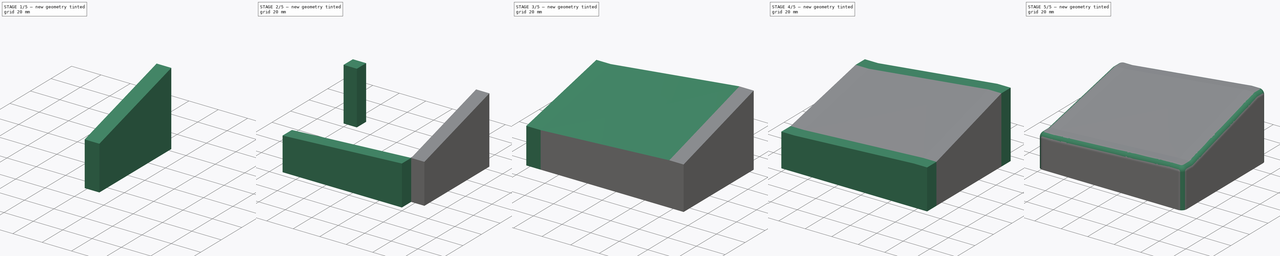
[diagram: build sequence overview — one tinted view per stage of 5, left to right]
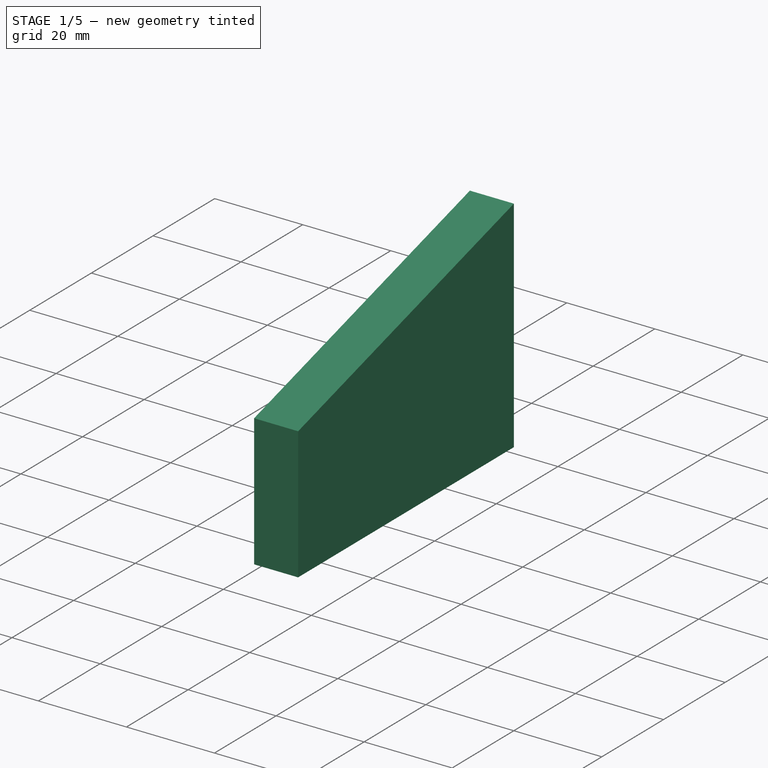
[diagram: stage 1 of 5 — iso view after this stage's code; geometry added in this stage tinted green]
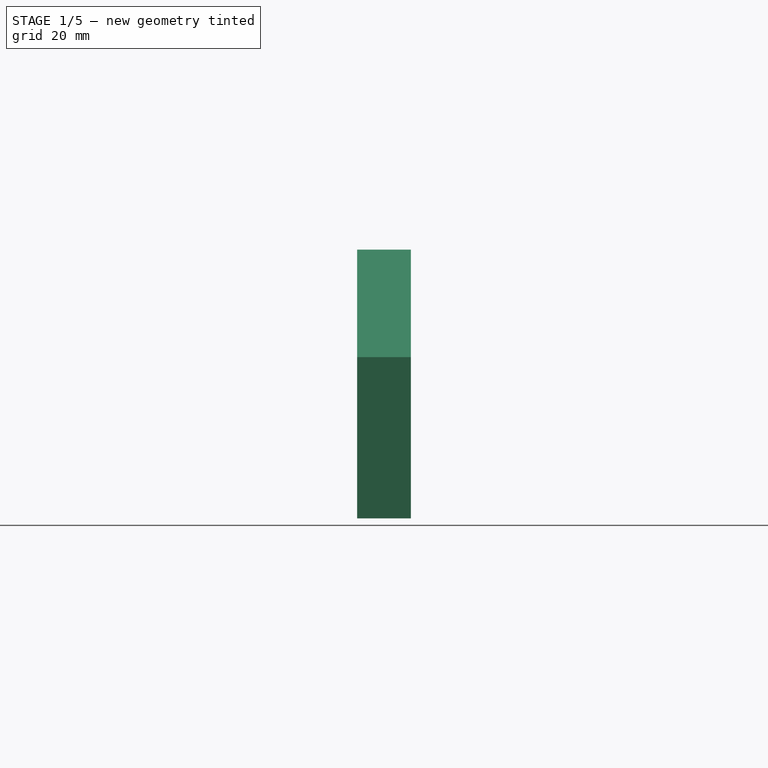
[diagram: stage 1 of 5 — front view after this stage's code; geometry added in this stage tinted green]
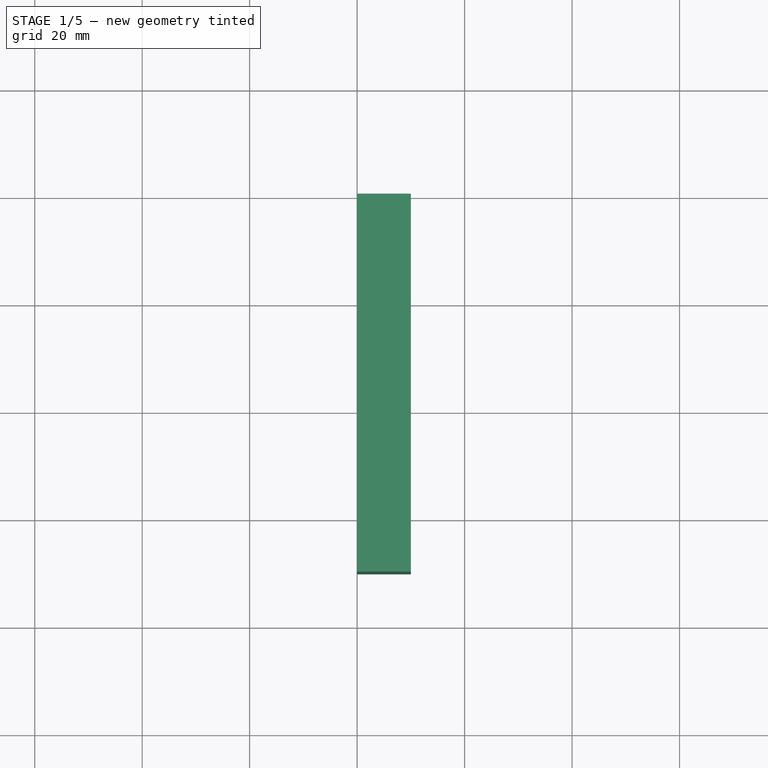
[diagram: stage 1 of 5 — top view after this stage's code; geometry added in this stage tinted green]
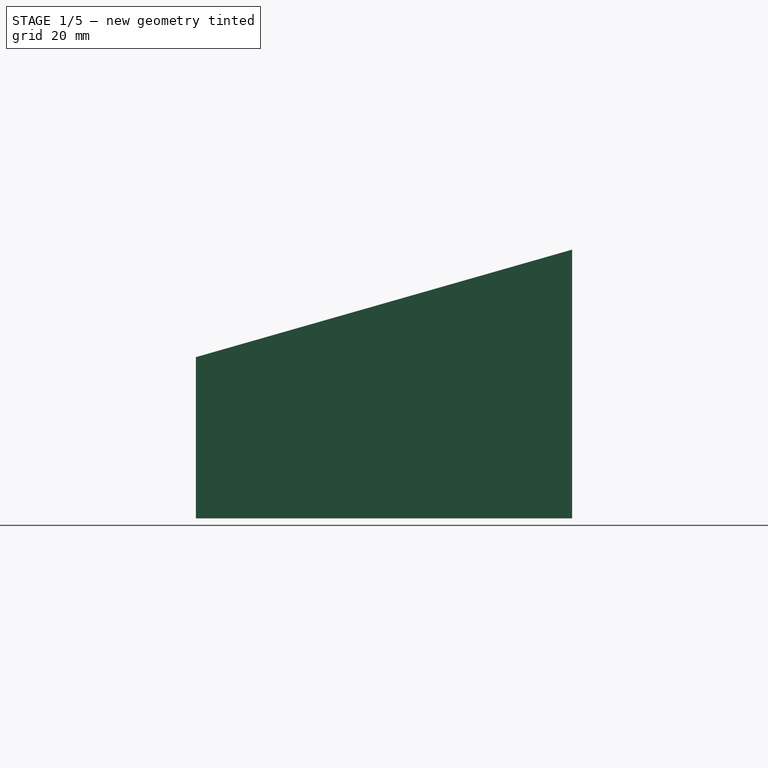
[diagram: stage 1 of 5 — right view after this stage's code; geometry added in this stage tinted green]
FCSTD DOCUMENT  (FreeCAD 1.0R39109 (Git))
Label: ek_wrist_rest
License: All rights reserved
LicenseURL: https://en.wikipedia.org/wiki/All_rights_reserved
objects: Part::FeaturePython×10, Part::Loft×5, Part::Box×4, Part::Fillet×3, Part::MultiFuse×1, PartDesign::FeatureBase×1, Sketcher::SketchObject×1, PartDesign::Pocket×1, PartDesign::Body×1
note: 31 computed .brp shape members not serialized (recipe doc carries the construction recipe); baked Part::Feature solids carry a one-line shape summary decoded from their .brp

FEATURE [Part::Box] Box002  label="Cube002"
  AttacherType = Attacher::AttachEngine3D
  Height = 50
  Length = 10
  Placement = pos=(100,0,0) rot=(0,0,1;0rad)
  Width = 10
FEATURE [Part::Box] Box003  label="Cube003"
  AttacherType = Attacher::AttachEngine3D
  Height = 30
  Length = 10
  Placement = pos=(100,-80,0) rot=(0,0,1;0rad)
  Width = 10
FEATURE [Part::Loft] Loft004
  Closed = false
  MaxDegree = 5
  Ruled = false
  Sections = -> [Facebinder006,Facebinder007]
  Solid = true
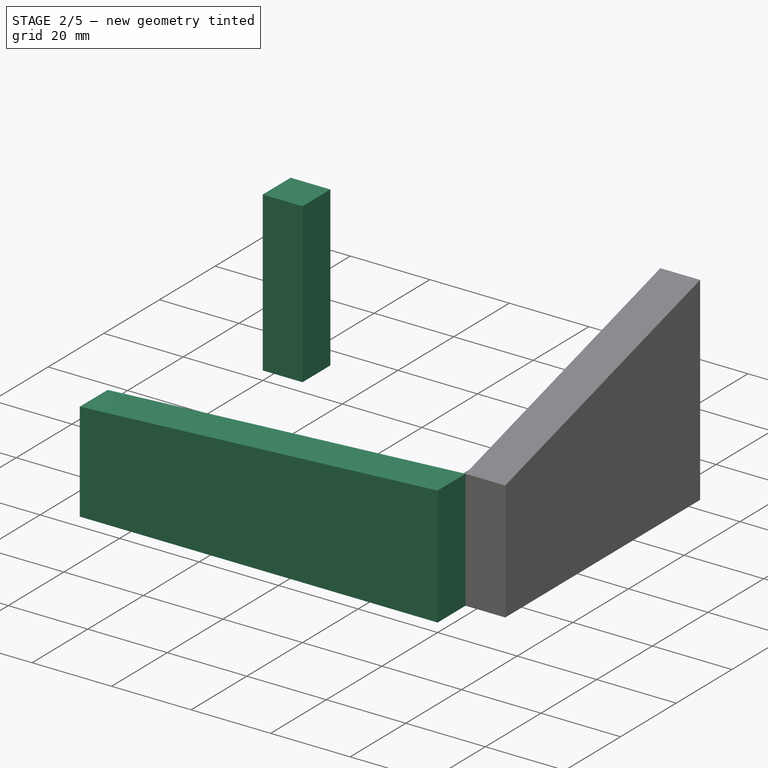
[diagram: stage 2 of 5 — iso view after this stage's code; geometry added in this stage tinted green]
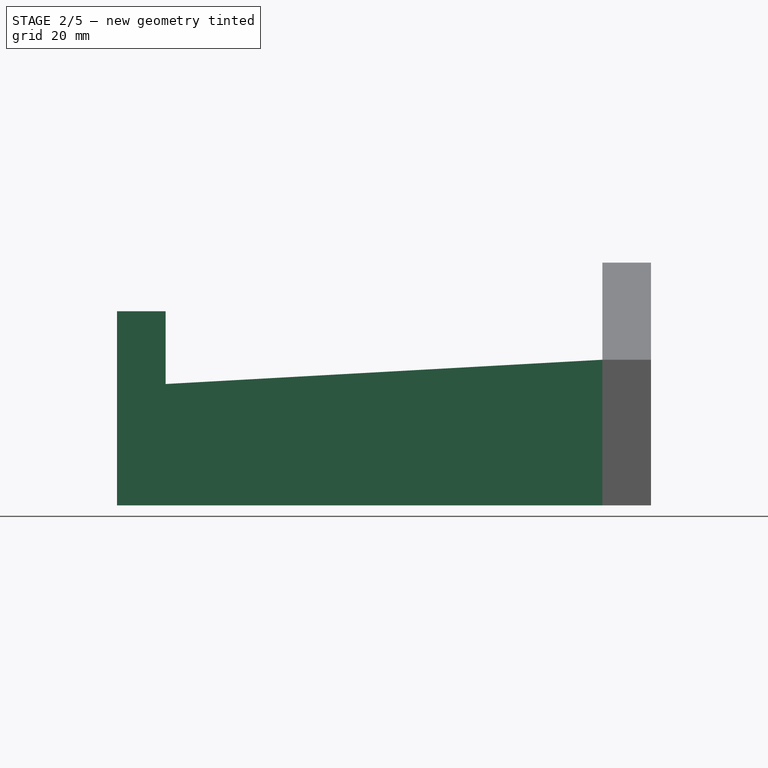
[diagram: stage 2 of 5 — front view after this stage's code; geometry added in this stage tinted green]
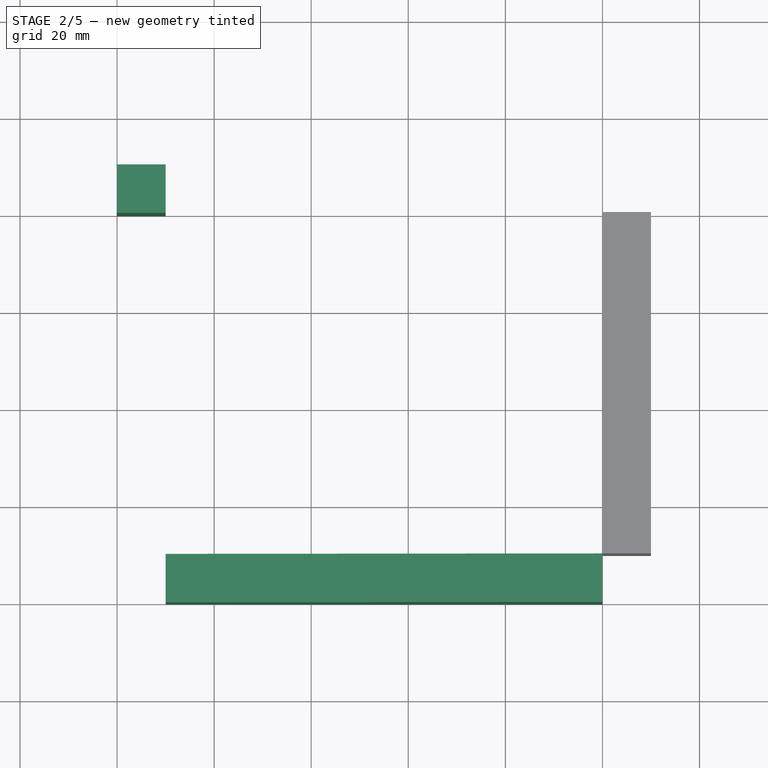
[diagram: stage 2 of 5 — top view after this stage's code; geometry added in this stage tinted green]
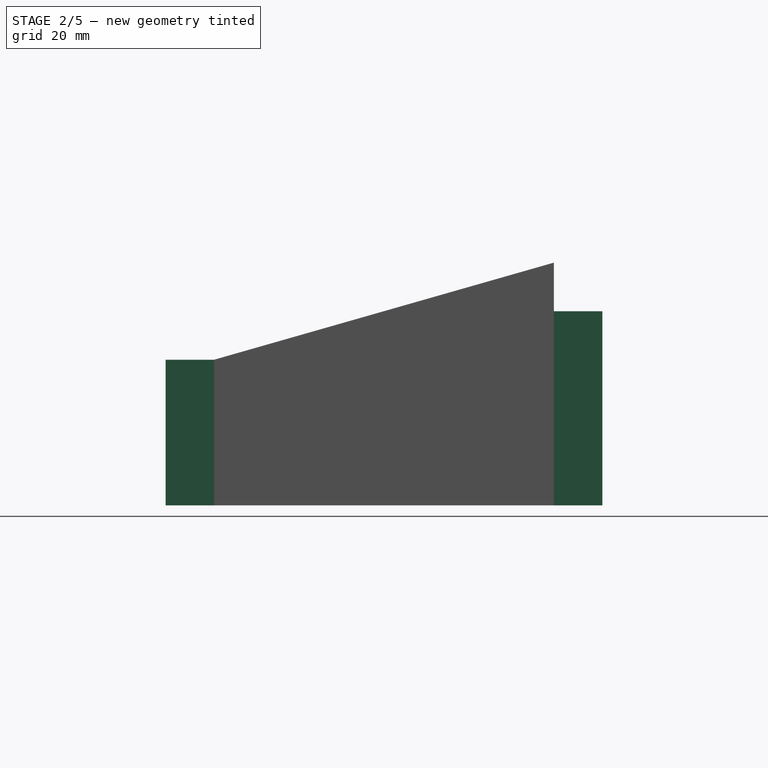
[diagram: stage 2 of 5 — right view after this stage's code; geometry added in this stage tinted green]
FEATURE [Part::Box] Box  label="Cube"
  AttacherType = Attacher::AttachEngine3D
  Height = 40
  Length = 10
  Width = 10
FEATURE [Part::Box] Box001  label="Cube001"
  AttacherType = Attacher::AttachEngine3D
  Height = 25
  Length = 10
  Placement = pos=(0,-80,0) rot=(0,0,1;0rad)
  Width = 10
FEATURE [Part::Loft] Loft001
  Closed = false
  MaxDegree = 5
  Ruled = false
  Sections = -> [Facebinder003,Facebinder002]
  Solid = true
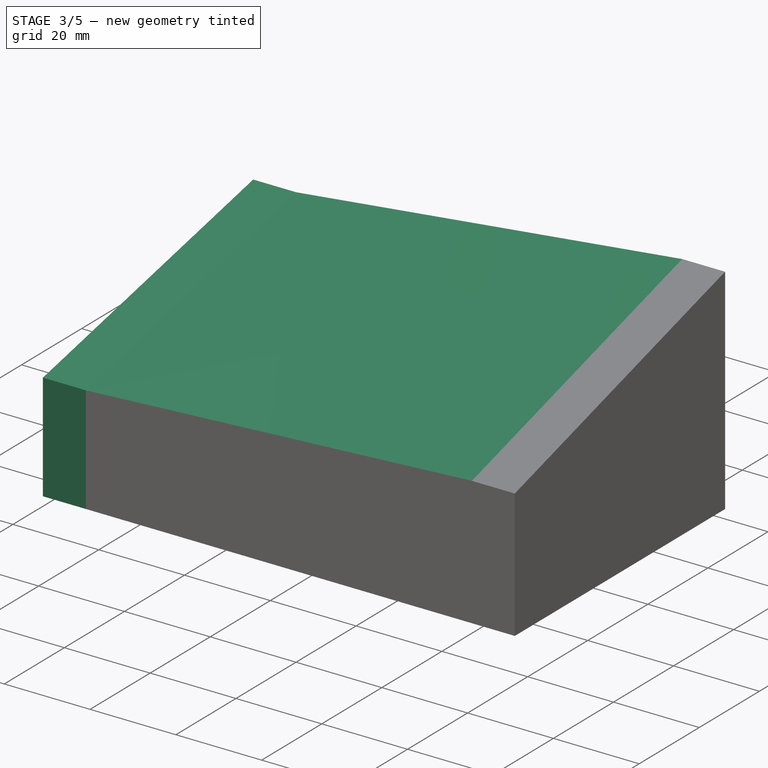
[diagram: stage 3 of 5 — iso view after this stage's code; geometry added in this stage tinted green]
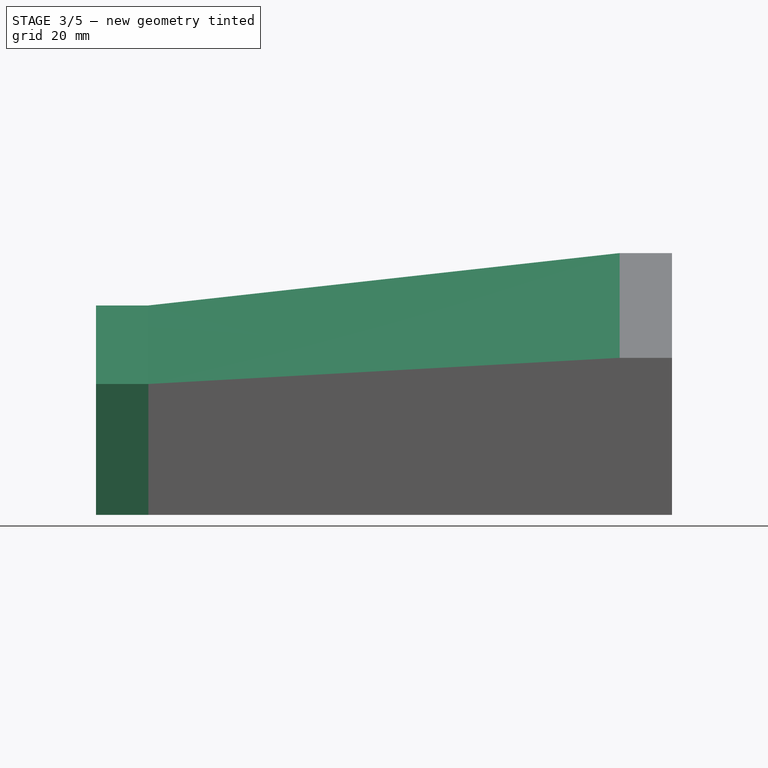
[diagram: stage 3 of 5 — front view after this stage's code; geometry added in this stage tinted green]
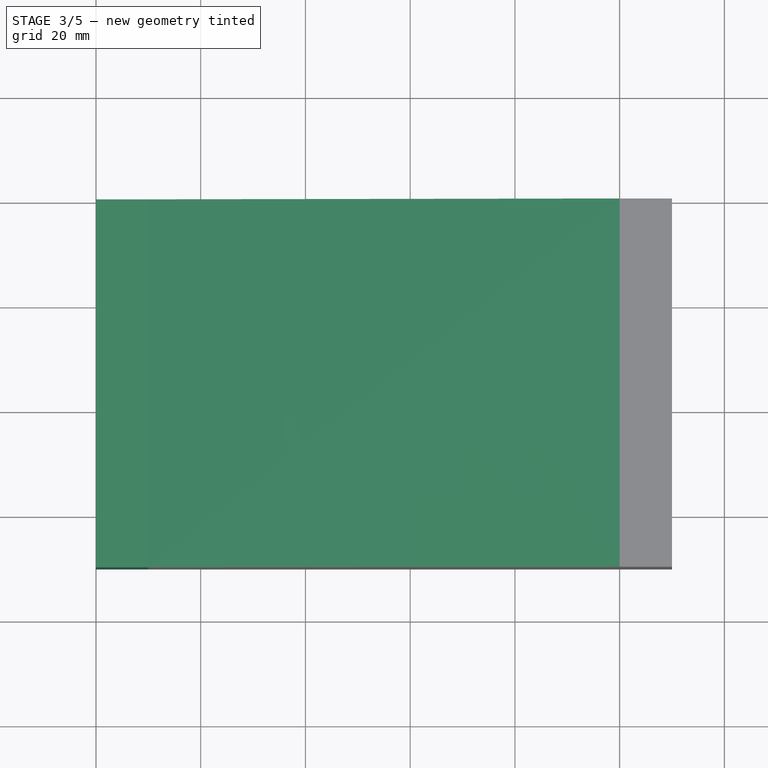
[diagram: stage 3 of 5 — top view after this stage's code; geometry added in this stage tinted green]
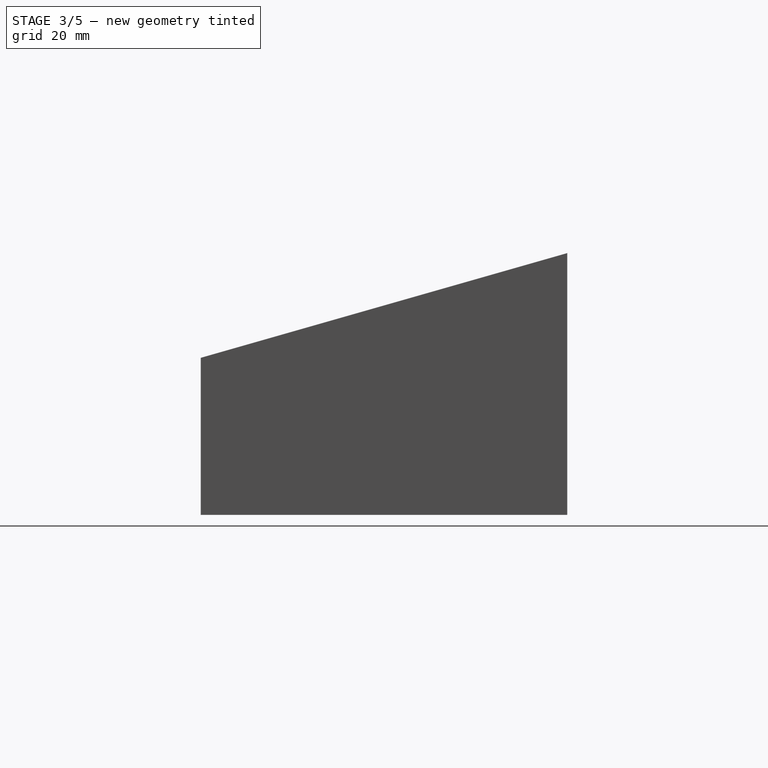
[diagram: stage 3 of 5 — right view after this stage's code; geometry added in this stage tinted green]
FEATURE [Part::FeaturePython] Facebinder  # WARN: FeaturePython — macro-defined, semantics opaque (R4)
  Area = 500
  Extrusion = 0
  Faces = -> [Box002]
  RemoveSplitter = false
  Sew = false
FEATURE [Part::FeaturePython] Facebinder001  # WARN: FeaturePython — macro-defined, semantics opaque (R4)
  Area = 400
  Extrusion = 0
  Faces = -> [Box]
  RemoveSplitter = false
  Sew = false
FEATURE [Part::FeaturePython] Facebinder002  # WARN: FeaturePython — macro-defined, semantics opaque (R4)
  Area = 300
  Extrusion = 0
  Faces = -> [Box003]
  RemoveSplitter = false
  Sew = false
FEATURE [Part::FeaturePython] Facebinder003  # WARN: FeaturePython — macro-defined, semantics opaque (R4)
  Area = 250
  Extrusion = 0
  Faces = -> [Box001]
  RemoveSplitter = false
  Sew = false
FEATURE [Part::Loft] Loft
  Closed = false
  MaxDegree = 5
  Ruled = false
  Sections = -> [Facebinder,Facebinder001]
  Solid = true
FEATURE [Part::FeaturePython] Facebinder004  # WARN: FeaturePython — macro-defined, semantics opaque (R4)
  Area = 400
  Extrusion = 0
  Faces = -> [Box]
  RemoveSplitter = false
  Sew = false
FEATURE [Part::FeaturePython] Facebinder005  # WARN: FeaturePython — macro-defined, semantics opaque (R4)
  Area = 4050
  Extrusion = 0
  Faces = -> [Loft]
  RemoveSplitter = false
  Sew = false
FEATURE [Part::FeaturePython] Facebinder006  # WARN: FeaturePython — macro-defined, semantics opaque (R4)
  Area = 500
  Extrusion = 0
  Faces = -> [Box002]
  RemoveSplitter = false
  Sew = false
FEATURE [Part::FeaturePython] Facebinder007  # WARN: FeaturePython — macro-defined, semantics opaque (R4)
  Area = 300
  Extrusion = 0
  Faces = -> [Box003]
  RemoveSplitter = false
  Sew = false
FEATURE [Part::FeaturePython] Facebinder008  # WARN: FeaturePython — macro-defined, semantics opaque (R4)
  Area = 2475
  Extrusion = 0
  Faces = -> [Loft001]
  RemoveSplitter = false
  Sew = false
FEATURE [Part::FeaturePython] Facebinder009  # WARN: FeaturePython — macro-defined, semantics opaque (R4)
  Area = 250
  Extrusion = 0
  Faces = -> [Box001]
  RemoveSplitter = false
  Sew = false
FEATURE [Part::Loft] Loft002
  Closed = false
  MaxDegree = 5
  Ruled = false
  Sections = -> [Facebinder004,Facebinder009]
  Solid = true
FEATURE [Part::Loft] Loft003
  Closed = false
  MaxDegree = 5
  Ruled = false
  Sections = -> [Facebinder005,Facebinder008]
  Solid = true
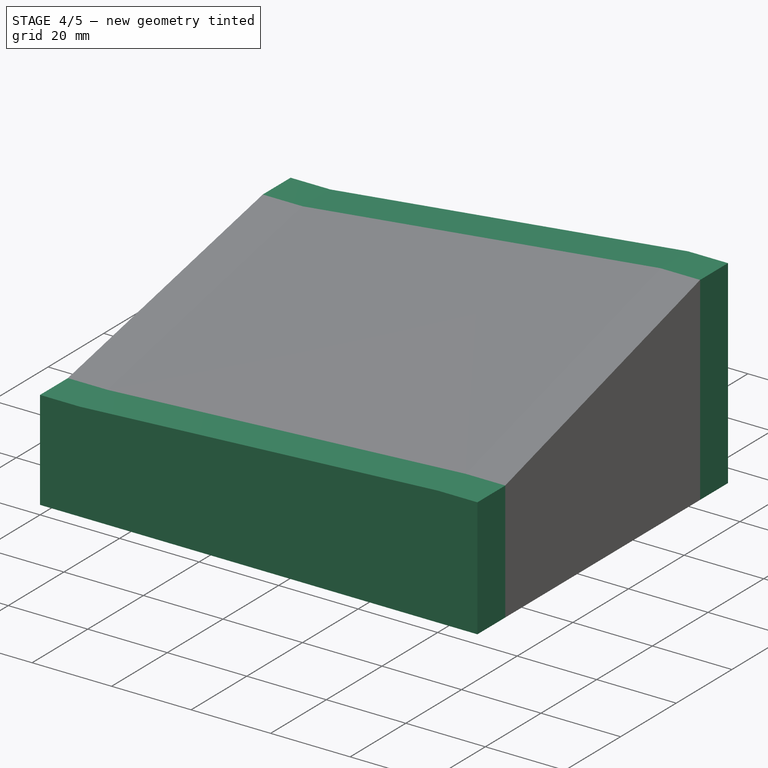
[diagram: stage 4 of 5 — iso view after this stage's code; geometry added in this stage tinted green]
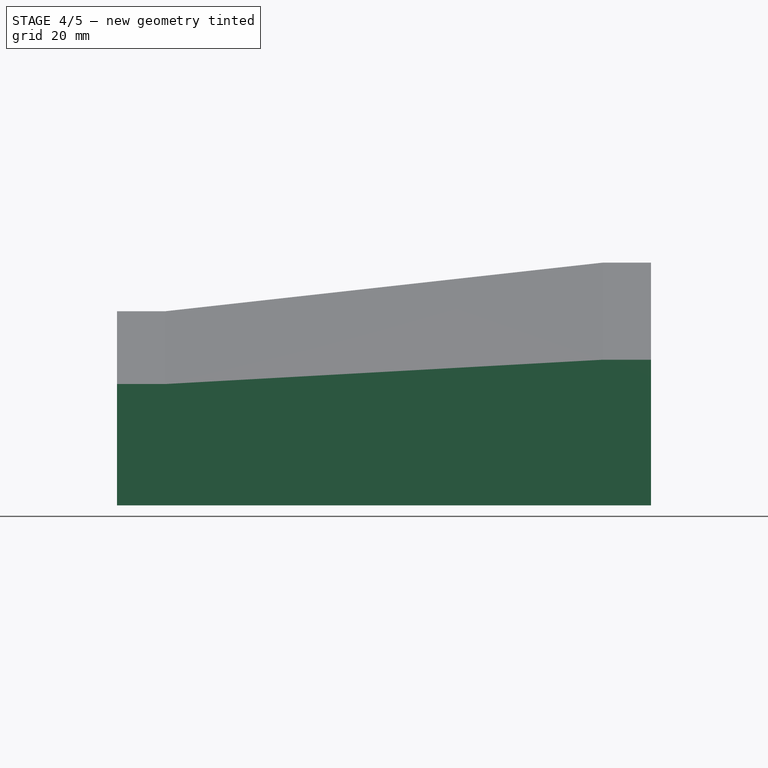
[diagram: stage 4 of 5 — front view after this stage's code; geometry added in this stage tinted green]
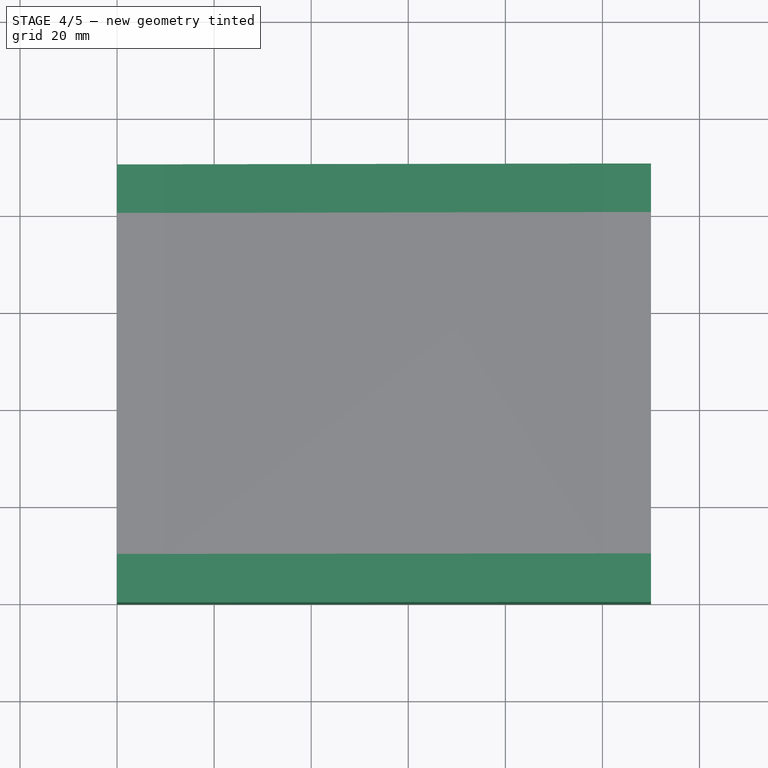
[diagram: stage 4 of 5 — top view after this stage's code; geometry added in this stage tinted green]
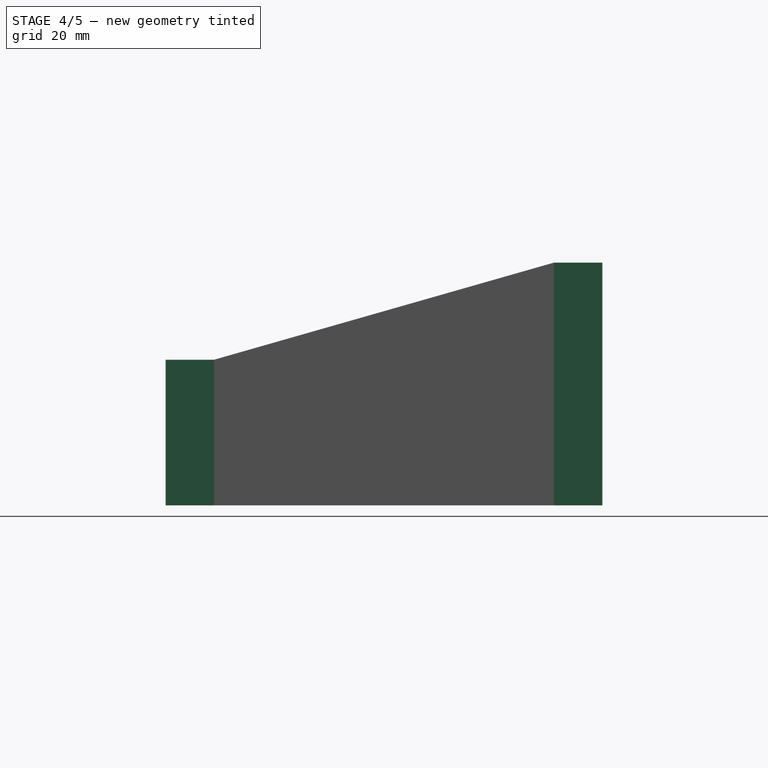
[diagram: stage 4 of 5 — right view after this stage's code; geometry added in this stage tinted green]
FEATURE [Part::MultiFuse] Fusion
  Shapes = -> [Loft004,Box,Box001,Box002,Box003,Loft,Loft001,Loft002,Loft003]
FEATURE [PartDesign::FeatureBase] BaseFeature
  BaseFeature = -> Fusion
  Suppressed = false
FEATURE [Sketcher::SketchObject] Sketch
  ArcFitTolerance = 1e-06
  AttachmentSupport = -> [BaseFeature]
  ExternalGeometry = -> [BaseFeature]
  FullyConstrained = true
  MakeInternals = false
  MapMode = 5
  Placement = pos=(0,0,0) rot=(1,0,0;3.14159rad)
  sketch-geometry (4):
    g0: Circle CenterX=100 CenterY=70 CenterZ=0 NormalX=0 NormalY=0 NormalZ=1 AngleXU=0 Radius=4.5
    g1: Circle CenterX=10 CenterY=70 CenterZ=0 NormalX=0 NormalY=0 NormalZ=1 AngleXU=0 Radius=4.5
    g2: Circle CenterX=100 CenterY=0 CenterZ=0 NormalX=0 NormalY=0 NormalZ=1 AngleXU=0 Radius=4.5
    g3: Circle CenterX=10 CenterY=0 CenterZ=0 NormalX=0 NormalY=0 NormalZ=1 AngleXU=0 Radius=4.5
  constraints (8):
    c: Diameter(g0) = 9
    c: Coincident(g0,g-3)
    c: Diameter(g1) = 9
    c: Coincident(g1,g-4)
    c: Diameter(g2) = 9
    c: Coincident(g2,g-6)
    c: Diameter(g3) = 9
    c: Coincident(g3,g-5)
FEATURE [PartDesign::Pocket] Pocket
  BaseFeature = -> BaseFeature
  Direction = (0,0,1)
  Length = 2.263
  Length2 = 5
  Profile = -> Sketch
  ReferenceAxis = -> Sketch [N_Axis]
  Refine = true
  Suppressed = false
  Type = 0
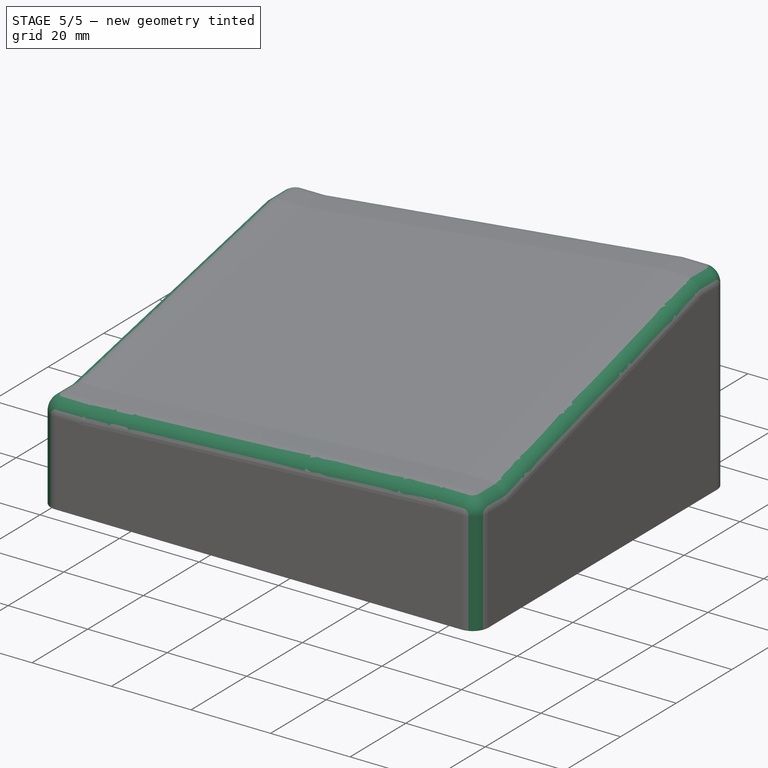
[diagram: stage 5 of 5 — iso view after this stage's code; geometry added in this stage tinted green]
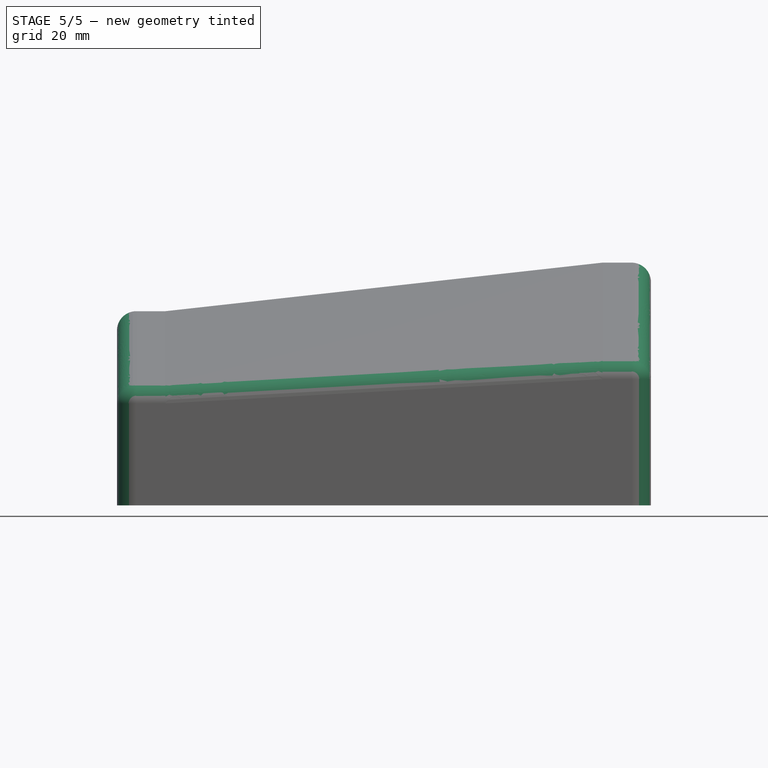
[diagram: stage 5 of 5 — front view after this stage's code; geometry added in this stage tinted green]
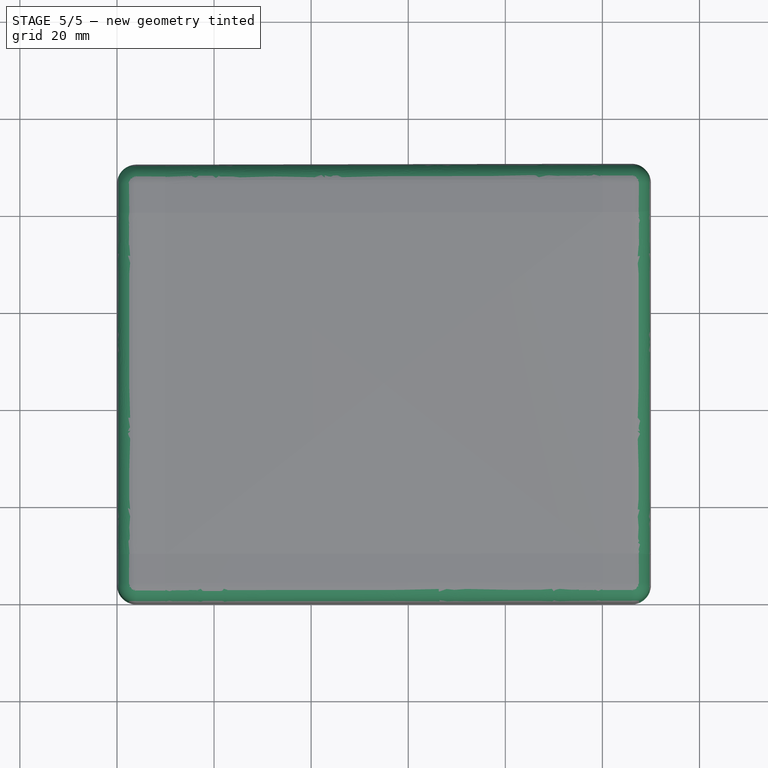
[diagram: stage 5 of 5 — top view after this stage's code; geometry added in this stage tinted green]
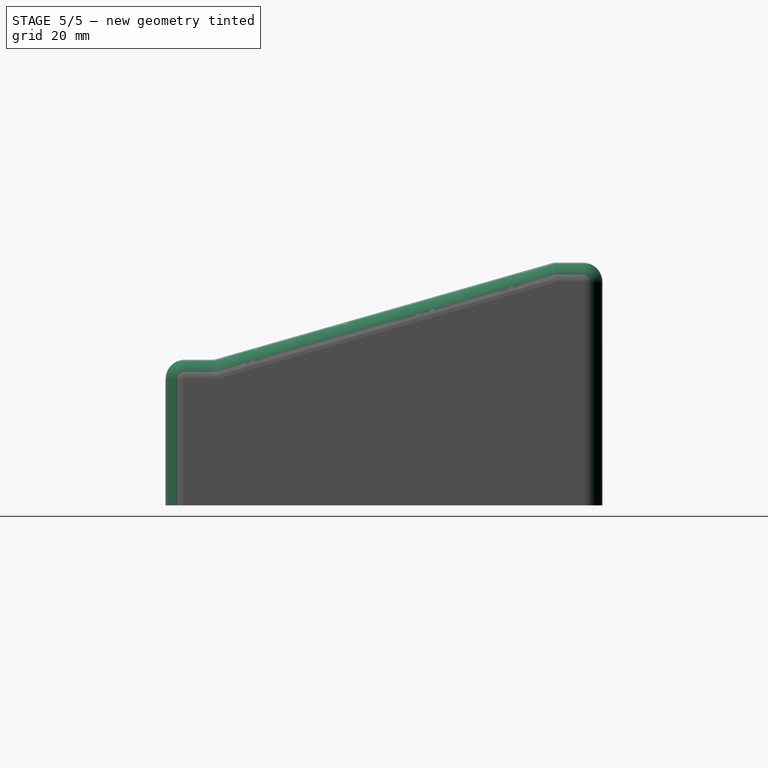
[diagram: stage 5 of 5 — right view after this stage's code; geometry added in this stage tinted green]
FEATURE [PartDesign::Body] Body
  AllowCompound = false
  BaseFeature = -> Fusion
  Group = -> [BaseFeature,Sketch,Pocket]
  Origin = -> Origin
  Tip = -> Pocket
FEATURE [Part::Fillet] Fillet
  Base = -> Pocket
  EdgeLinks = -> Pocket [Edge4,Edge5,Edge12,Edge35,Edge38,Edge47]
  Edges = 6 edges r=4: [Edge4,Edge5,Edge12,Edge35,Edge38,Edge47]
FEATURE [Part::Fillet] Fillet001
  Base = -> Fillet
  EdgeLinks = -> Fillet [Edge38,Edge51,Edge52,Edge55,Edge56,Edge57,Edge58]
  Edges = 7 edges r=4: [Edge38,Edge51,Edge52,Edge55,Edge56,Edge57,Edge58]
FEATURE [Part::Fillet] Fillet002
  Base = -> Fillet001
  EdgeLinks = -> Fillet001 [Edge43,Edge46,Edge47,Edge51,Edge55,Edge56,Edge57]
  Edges = 7 edges r=4: [Edge43,Edge46,Edge47,Edge51,Edge55,Edge56,Edge57]
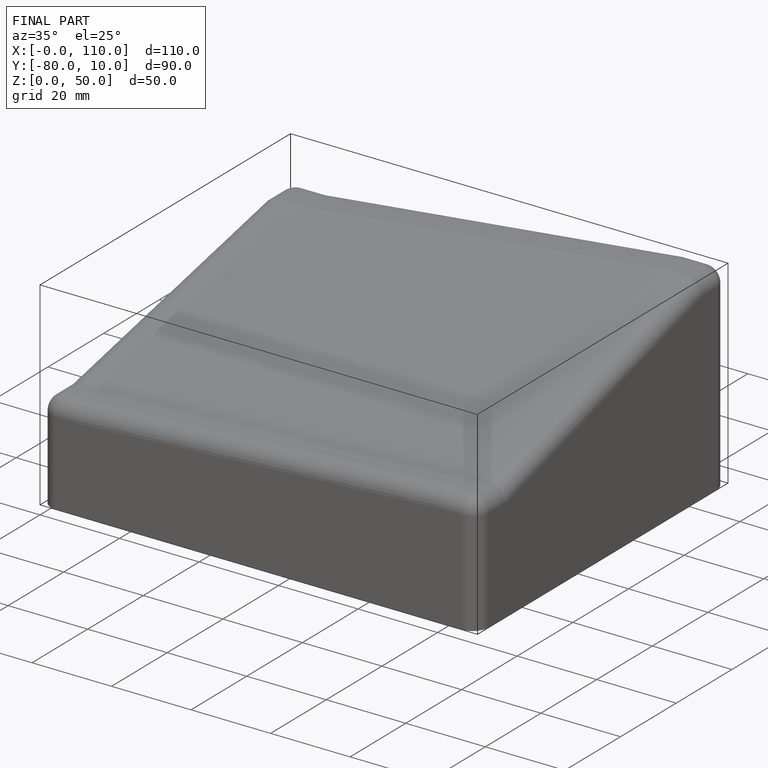
[diagram: finished part — iso view with bounding-box wireframe]
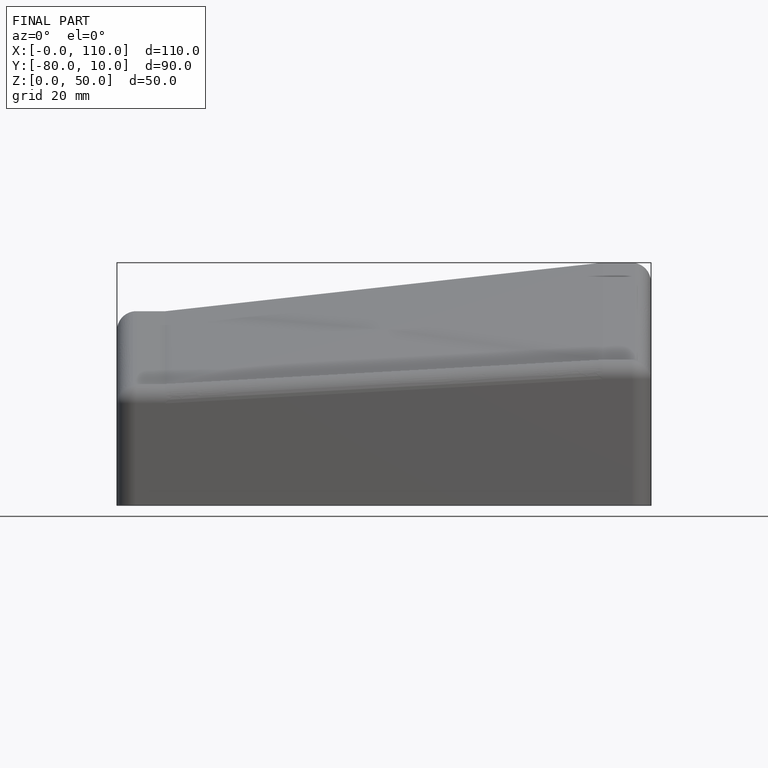
[diagram: finished part — front view with bounding-box wireframe]
